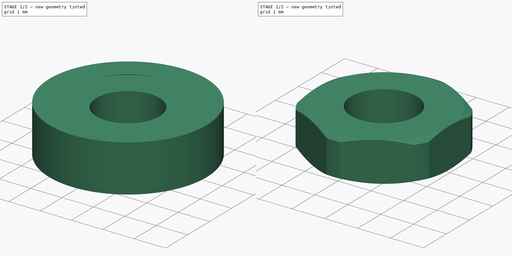
[diagram: build sequence overview — one tinted view per stage of 2, left to right]
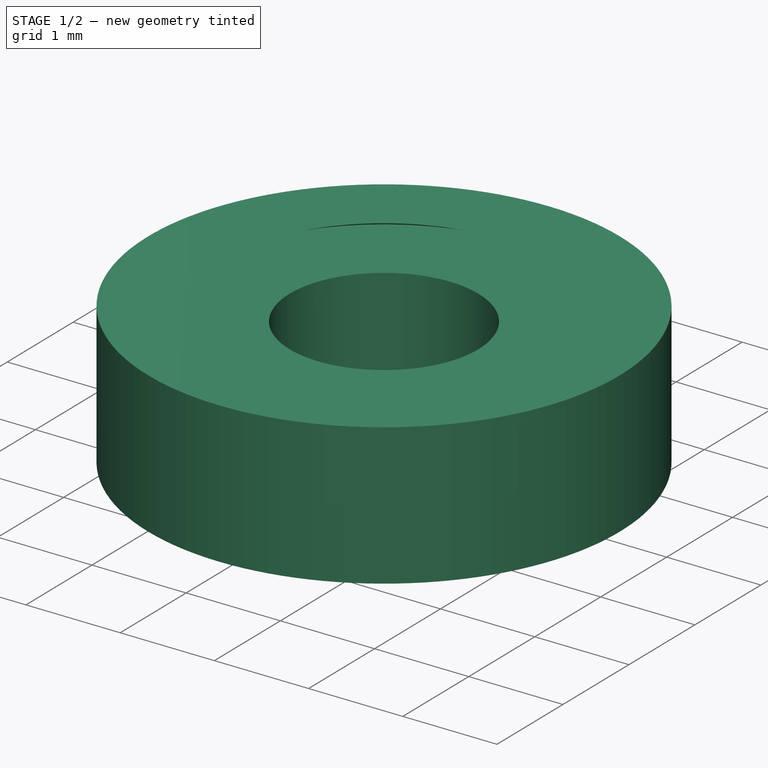
[diagram: stage 1 of 2 — iso view after this stage's code; geometry added in this stage tinted green]
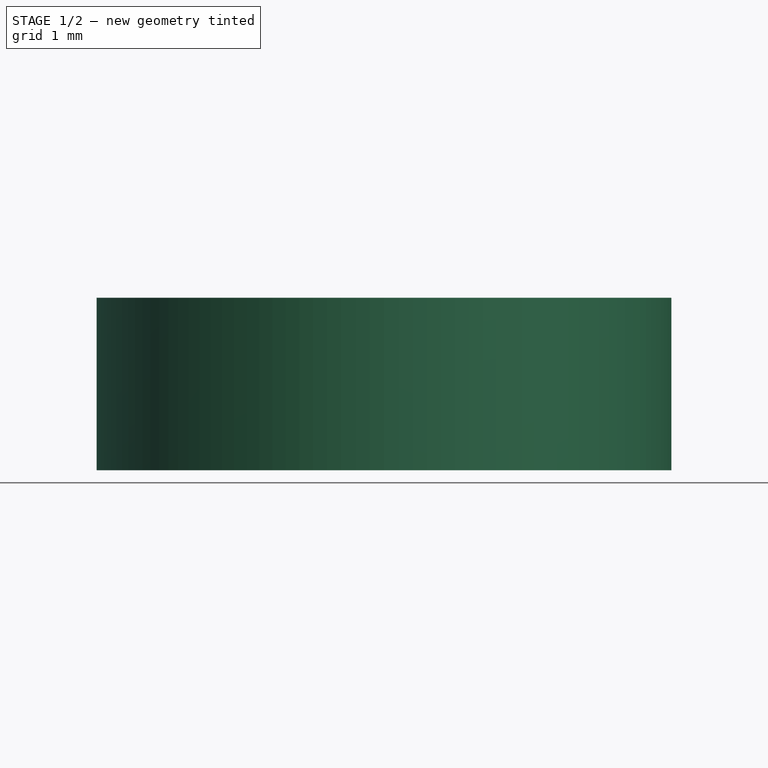
[diagram: stage 1 of 2 — front view after this stage's code; geometry added in this stage tinted green]
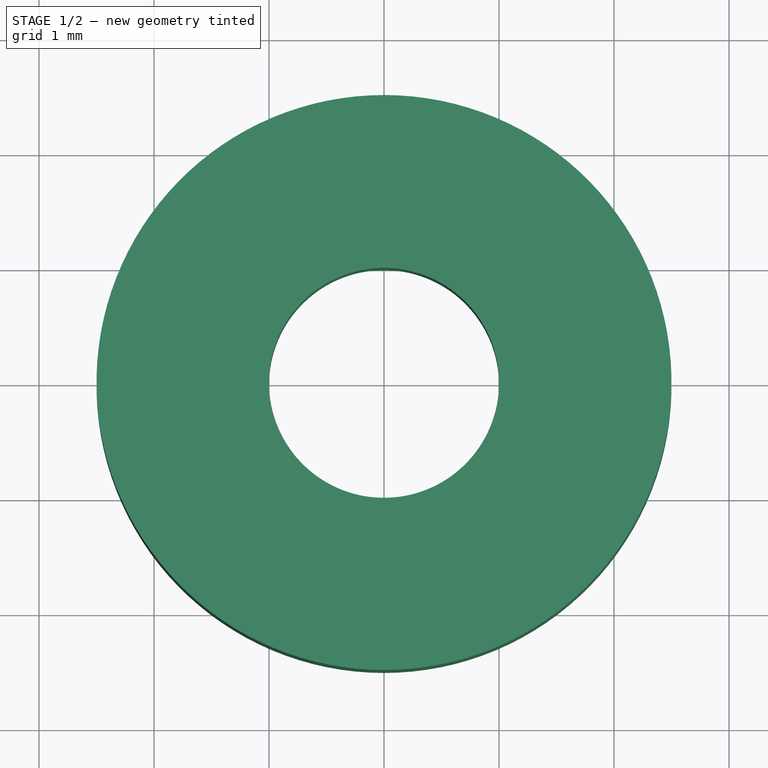
[diagram: stage 1 of 2 — top view after this stage's code; geometry added in this stage tinted green]
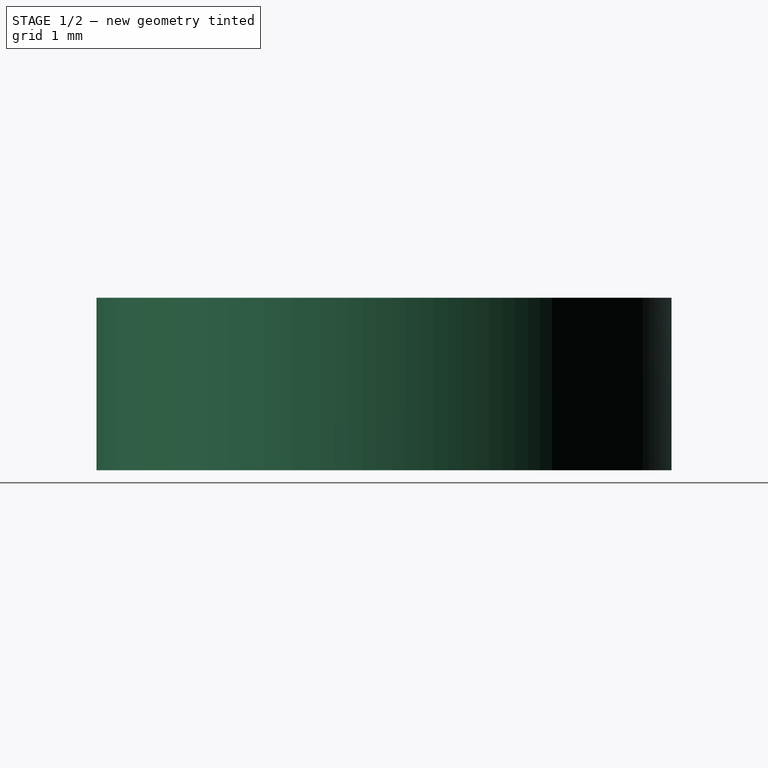
[diagram: stage 1 of 2 — right view after this stage's code; geometry added in this stage tinted green]
FCSTD DOCUMENT  (FreeCAD 0.18R16117 (Git))
Label: Nut-M2
License: All rights reserved
LicenseURL: http://en.wikipedia.org/wiki/All_rights_reserved
objects: Sketcher::SketchObject×2, PartDesign::Body×2, PartDesign::Pad×1, PartDesign::Revolution×1, Part::Cut×1
note: 9 computed .brp shape members not serialized (recipe doc carries the construction recipe); baked Part::Feature solids carry a one-line shape summary decoded from their .brp

FEATURE [Sketcher::SketchObject] Sketch
  MapMode = 5
  Support = -> [XY_Plane]
  sketch-geometry (8):
    g0: LineSegment StartX=2 StartY=1.1547 StartZ=0 EndX=-4e-16 EndY=2.3094 EndZ=0
    g1: LineSegment StartX=-4e-16 StartY=2.3094 StartZ=0 EndX=-2 EndY=1.1547 EndZ=0
    g2: LineSegment StartX=-2 StartY=1.1547 StartZ=0 EndX=-2 EndY=-1.1547 EndZ=0
    g3: LineSegment StartX=-2 StartY=-1.1547 StartZ=0 EndX=4e-16 EndY=-2.3094 EndZ=0
    g4: LineSegment StartX=4e-16 StartY=-2.3094 StartZ=0 EndX=2 EndY=-1.1547 EndZ=0
    g5: LineSegment StartX=2 StartY=-1.1547 StartZ=0 EndX=2 EndY=1.1547 EndZ=0
    g6: Circle [constr] CenterX=0 CenterY=0 CenterZ=0 NormalX=0 NormalY=0 NormalZ=1 AngleXU=0 Radius=2.3094
    g7: Circle CenterX=0 CenterY=0 CenterZ=0 NormalX=0 NormalY=0 NormalZ=1 AngleXU=0 Radius=1
  constraints (17):
    c: Coincident(g0,g1)
    c: Coincident(g1,g2)
    c: Coincident(g2,g3)
    c: Coincident(g3,g4)
    c: Coincident(g4,g5)
    c: Coincident(g5,g0)
    c: Equal(g0, g1-g5) x5
    c: PointOnObject(g0,g6)
    c: PointOnObject(g1,g6)
    c: PointOnObject(g3,g6)
    c: PointOnObject(g4,g6)
    c: Coincident(g6,g-1)
    c: Coincident(g7,g-1)
    c: Diameter(g7) = 2
    c: Symmetric(g1,g2,g-1)
    c: PointOnObject(g0,g6)
    c: DistanceX(g1,g0) = 4
FEATURE [PartDesign::Pad] Pad
  Length = 1.2
  Length2 = 100
  Midplane = true
  Profile = -> Sketch
  Type = 0
FEATURE [PartDesign::Body] Body
  Group = -> [Sketch,Pad]
  Origin = -> Origin
  Tip = -> Pad
FEATURE [Sketcher::SketchObject] Sketch001
  MapMode = 5
  Placement = pos=(0,0,0) rot=(0.57735,0.57735,0.57735;2.0944rad)
  Support = -> [YZ_Plane001]
  sketch-geometry (6):
    g0: LineSegment StartX=2.2 StartY=0.5 StartZ=0 EndX=1.7 EndY=0.75 EndZ=0
    g1: LineSegment StartX=2.2 StartY=-0.5 StartZ=0 EndX=1.7 EndY=-0.75 EndZ=0
    g2: LineSegment StartX=1.7 StartY=0.75 StartZ=0 EndX=2.5 EndY=0.75 EndZ=0
    g3: LineSegment StartX=2.5 StartY=0.75 StartZ=0 EndX=2.5 EndY=-0.75 EndZ=0
    g4: LineSegment StartX=2.5 StartY=-0.75 StartZ=0 EndX=1.7 EndY=-0.75 EndZ=0
    g5: LineSegment StartX=2.2 StartY=0.5 StartZ=0 EndX=2.2 EndY=-0.5 EndZ=0
  constraints (16):
    c: DistanceX(g-1,g1) = 1.7
    c: DistanceY(g1,g-1) = 0.75
    c: Symmetric(g0,g1,g-1)
    c: Horizontal(g2)
    c: Coincident(g2,g3)
    c: Vertical(g3)
    c: Coincident(g3,g4)
    c: Horizontal(g4)
    c: DistanceY(g5,g5) = 1
    c: Coincident(g0,g5)
    c: Coincident(g5,g1)
    c: Coincident(g4,g1)
    c: Symmetric(g0,g1,g-1)
    c: Coincident(g2,g0)
    c: DistanceX(g4,g4) = 0.8
    c: DistanceX(g0) = 2.2
FEATURE [PartDesign::Revolution] Revolution
  Angle = 360
  Axis = (-2e-16,3e-16,1)
  Base = (0,0,0)
  Placement = pos=(0,0,0) rot=(0.57735,0.57735,0.57735;2.0944rad)
  Profile = -> Sketch001
  ReferenceAxis = -> Sketch001 [V_Axis]
  Reversed = true
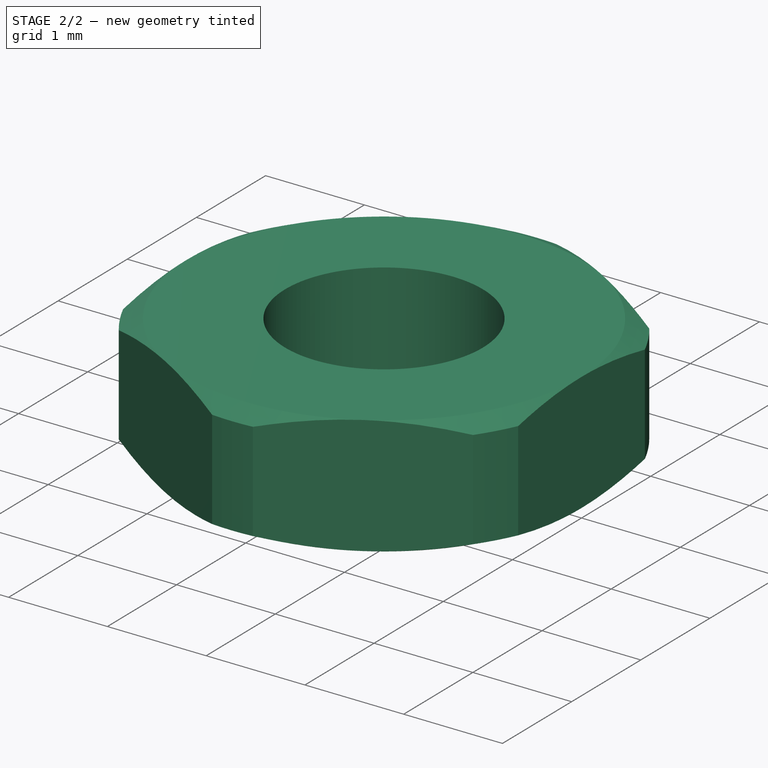
[diagram: stage 2 of 2 — iso view after this stage's code; geometry added in this stage tinted green]
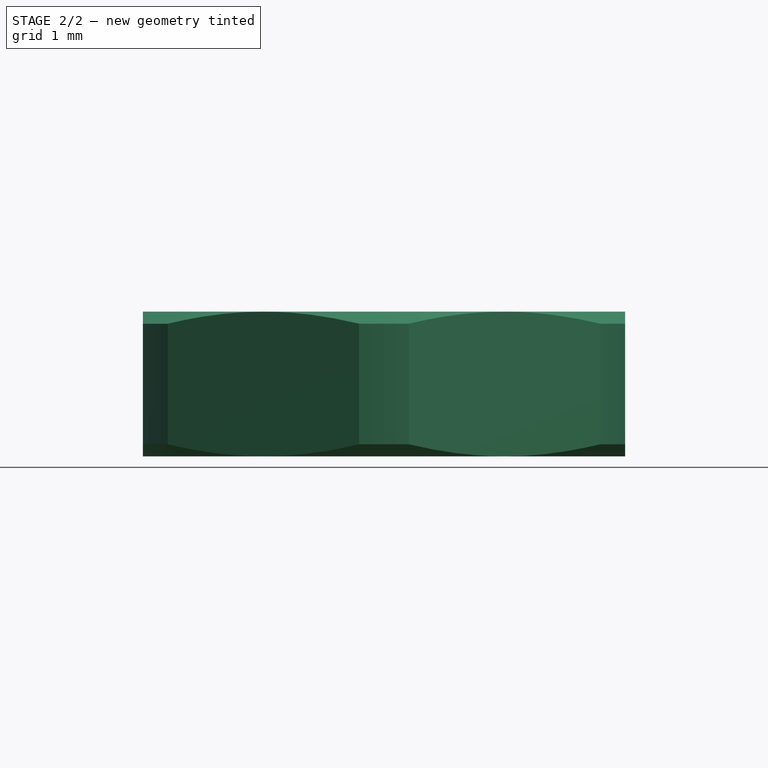
[diagram: stage 2 of 2 — front view after this stage's code; geometry added in this stage tinted green]
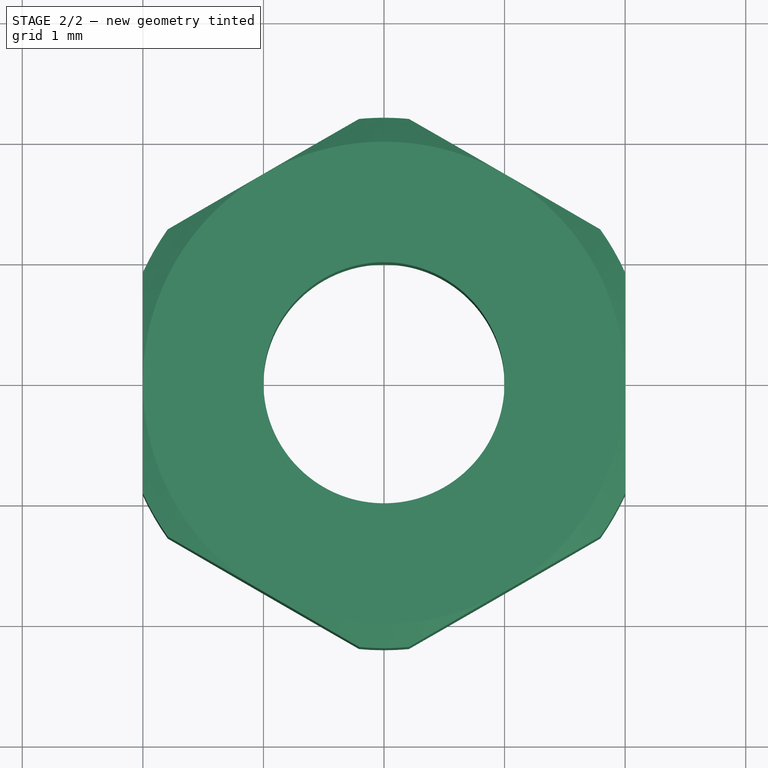
[diagram: stage 2 of 2 — top view after this stage's code; geometry added in this stage tinted green]
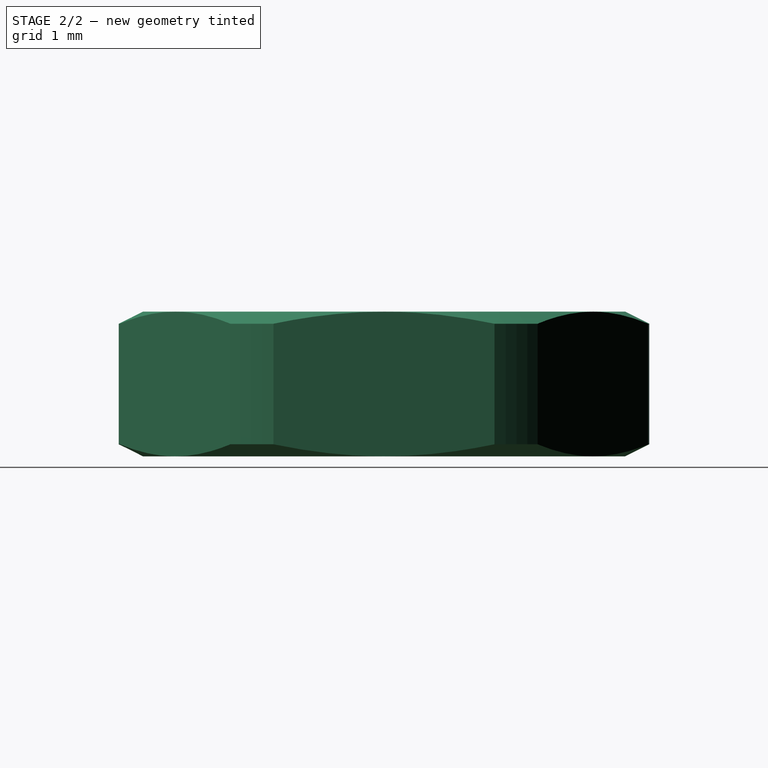
[diagram: stage 2 of 2 — right view after this stage's code; geometry added in this stage tinted green]
FEATURE [PartDesign::Body] Body001
  Group = -> [Sketch001,Revolution]
  Origin = -> Origin001
  Tip = -> Revolution
FEATURE [Part::Cut] Cut
  Base = -> Body
  Tool = -> Body001
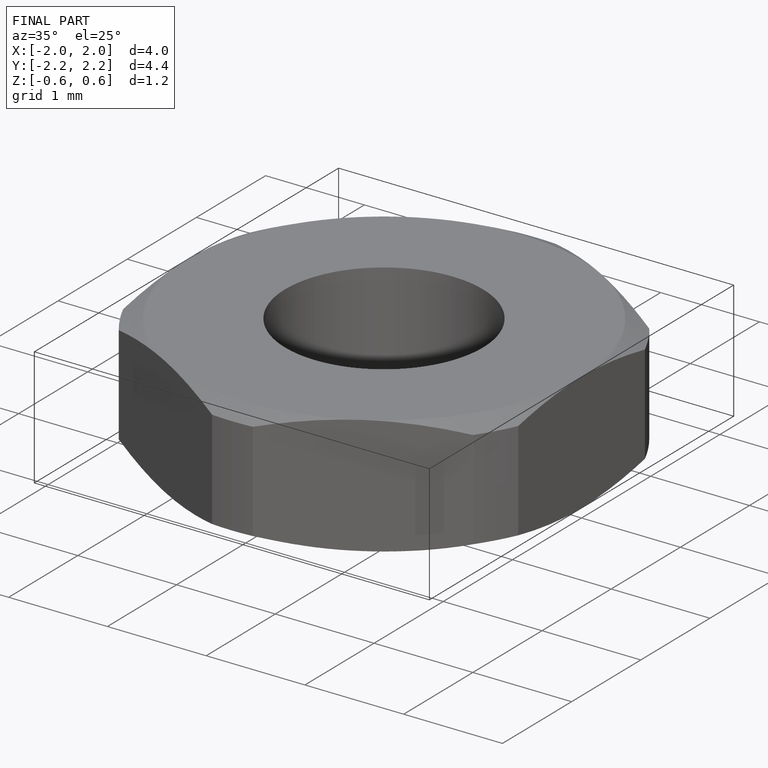
[diagram: finished part — iso view with bounding-box wireframe]
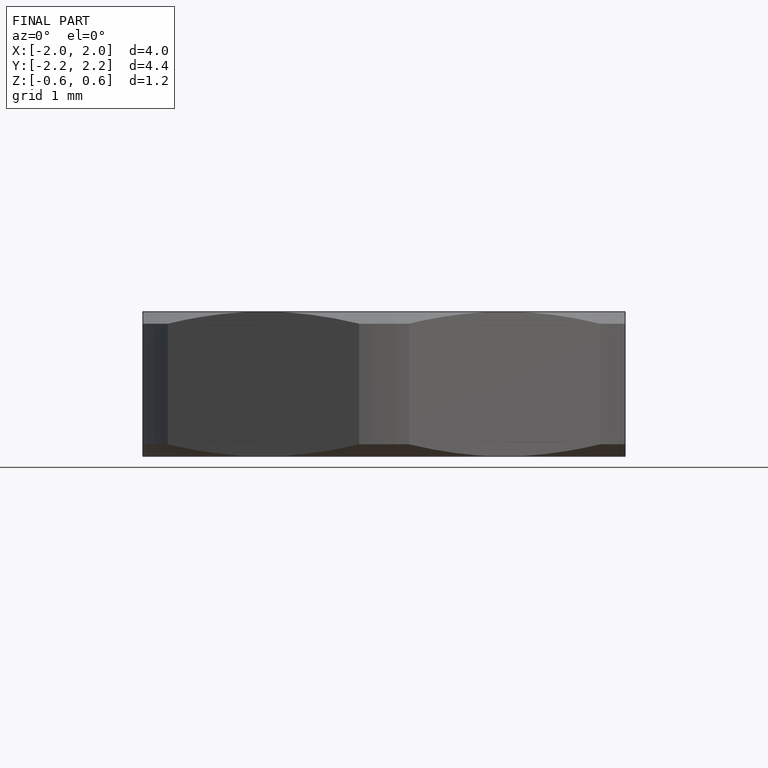
[diagram: finished part — front view with bounding-box wireframe]
